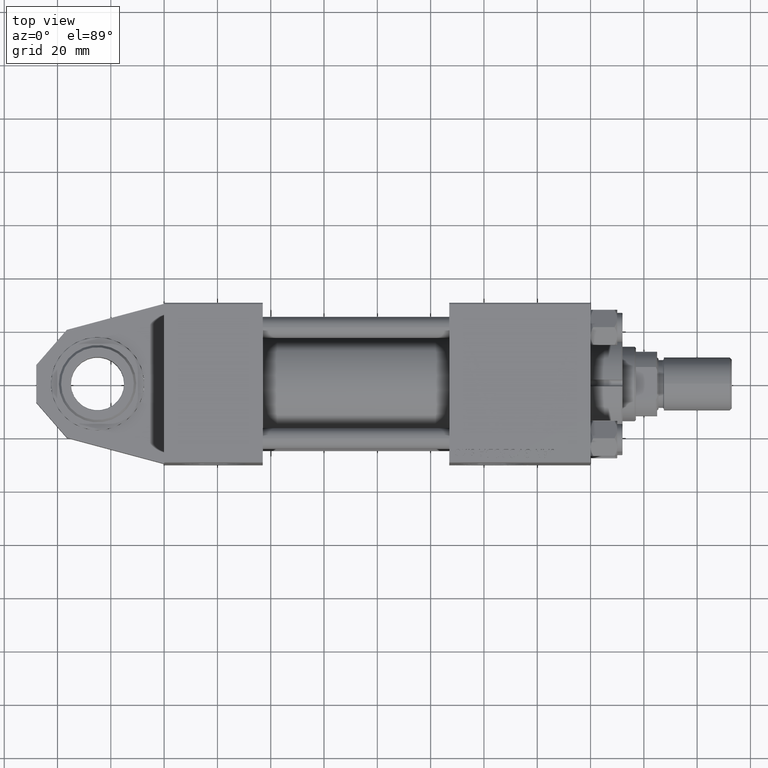
[diagram: clean part render]
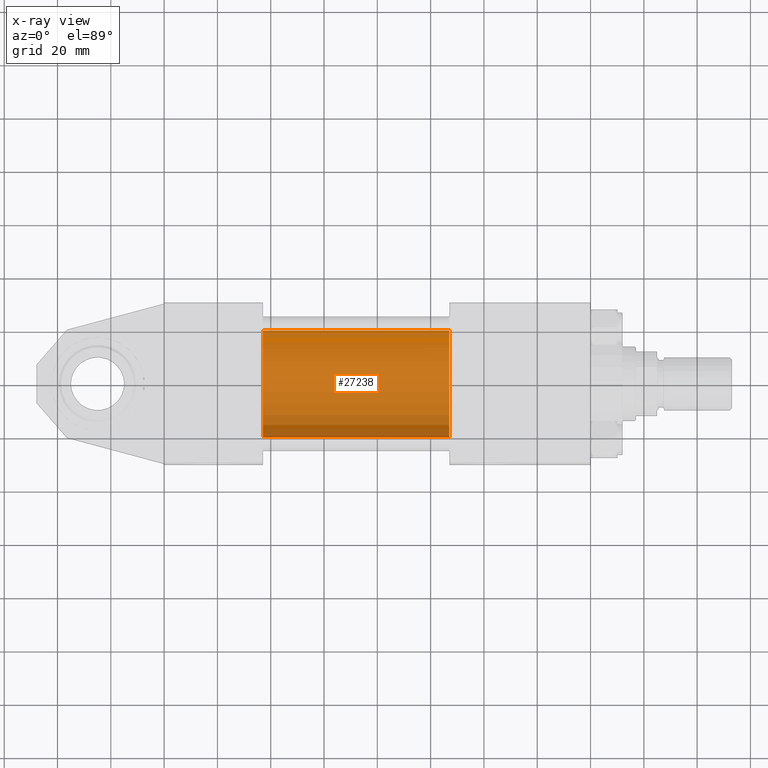
[diagram: x-ray — body ghosted, one internal face saturated and labeled with its STEP entity id]
A machine part, top view, then the same camera in x-ray: the body is ghosted and one INTERNAL B-rep face — a face not visible from any outside direction — is saturated and labeled: STEP entity #27238.
In plain terms, the highlighted cylindrical surface (partial cylindrical patch) has radius 20 mm, axis along (-1, 0, -0).
Its self-contained STEP definition (entity closure, byte-faithful):
#2736 = CARTESIAN_POINT ( 'NONE',  ( 107.0000000000000142, -1.527916156705042519E-16, -20.00000000000000000 ) ) ;
#4142 = CYLINDRICAL_SURFACE ( 'NONE', #8722, 20.00000000000000000 ) ;
#8722 = AXIS2_PLACEMENT_3D ( 'NONE', #24379, #39796, #28252 ) ;
#9808 = DIRECTION ( 'NONE',  ( 0.000000000000000000, 0.000000000000000000, -1.000000000000000000 ) ) ;
#10475 = DIRECTION ( 'NONE',  ( 0.000000000000000000, 0.000000000000000000, -1.000000000000000000 ) ) ;
#13080 = FACE_OUTER_BOUND ( 'NONE', #24591, .T. ) ;
#14569 = VERTEX_POINT ( 'NONE', #21030 ) ;
#15342 = EDGE_CURVE ( 'NONE', #38005, #14569, #42095, .T. ) ;
#16737 = CARTESIAN_POINT ( 'NONE',  ( 107.0000000000000142, -2.602085213965210642E-15, 20.00000000000000000 ) ) ;
#18254 = CARTESIAN_POINT ( 'NONE',  ( 37.00000000000000000, -2.602085213965210642E-15, 0.000000000000000000 ) ) ;
#19676 = EDGE_CURVE ( 'NONE', #37096, #14569, #37398, .T. ) ;
#21030 = CARTESIAN_POINT ( 'NONE',  ( 37.00000000000000000, -1.527916156705042519E-16, -20.00000000000000000 ) ) ;
#21971 = AXIS2_PLACEMENT_3D ( 'NONE', #45393, #29990, #10475 ) ;
#22488 = ORIENTED_EDGE ( 'NONE', *, *, #36102, .T. ) ;
#23599 = CARTESIAN_POINT ( 'NONE',  ( 37.00000000000000000, -2.602085213965210642E-15, 20.00000000000000000 ) ) ;
#24379 = CARTESIAN_POINT ( 'NONE',  ( 107.0000000000000142, -2.602085213965210642E-15, 0.000000000000000000 ) ) ;
#24591 = EDGE_LOOP ( 'NONE', ( #22488, #27065, #48741, #28381 ) ) ;
#25276 = LINE ( 'NONE', #40936, #49941 ) ;
#25712 = DIRECTION ( 'NONE',  ( 1.000000000000000000, 0.000000000000000000, 0.000000000000000000 ) ) ;
#26756 = VERTEX_POINT ( 'NONE', #16737 ) ;
#27065 = ORIENTED_EDGE ( 'NONE', *, *, #19676, .T. ) ;
#27238 = ADVANCED_FACE ( 'NONE', ( #13080 ), #4142, .F. ) ;
#28252 = DIRECTION ( 'NONE',  ( 0.000000000000000000, 0.000000000000000000, 1.000000000000000000 ) ) ;
#28381 = ORIENTED_EDGE ( 'NONE', *, *, #34290, .F. ) ;
#29990 = DIRECTION ( 'NONE',  ( 1.000000000000000000, 0.000000000000000000, 0.000000000000000000 ) ) ;
#31835 = CIRCLE ( 'NONE', #21971, 20.00000000000000000 ) ;
#34290 = EDGE_CURVE ( 'NONE', #26756, #38005, #25276, .T. ) ;
#35562 = AXIS2_PLACEMENT_3D ( 'NONE', #18254, #25712, #9808 ) ;
#36102 = EDGE_CURVE ( 'NONE', #26756, #37096, #31835, .T. ) ;
#37096 = VERTEX_POINT ( 'NONE', #41268 ) ;
#37398 = LINE ( 'NONE', #2736, #43054 ) ;
#38005 = VERTEX_POINT ( 'NONE', #23599 ) ;
#39796 = DIRECTION ( 'NONE',  ( -1.000000000000000000, -0.000000000000000000, -0.000000000000000000 ) ) ;
#40936 = CARTESIAN_POINT ( 'NONE',  ( 107.0000000000000142, -2.602085213965210642E-15, 20.00000000000000000 ) ) ;
#41268 = CARTESIAN_POINT ( 'NONE',  ( 107.0000000000000142, -1.527916156705042519E-16, -20.00000000000000000 ) ) ;
#42095 = CIRCLE ( 'NONE', #35562, 20.00000000000000000 ) ;
#43054 = VECTOR ( 'NONE', #45880, 1000.000000000000000 ) ;
#45057 = DIRECTION ( 'NONE',  ( -1.000000000000000000, -0.000000000000000000, -0.000000000000000000 ) ) ;
#45393 = CARTESIAN_POINT ( 'NONE',  ( 107.0000000000000142, -2.602085213965210642E-15, 0.000000000000000000 ) ) ;
#45880 = DIRECTION ( 'NONE',  ( -1.000000000000000000, -0.000000000000000000, -0.000000000000000000 ) ) ;
#48741 = ORIENTED_EDGE ( 'NONE', *, *, #15342, .F. ) ;
#49941 = VECTOR ( 'NONE', #45057, 1000.000000000000000 ) ;